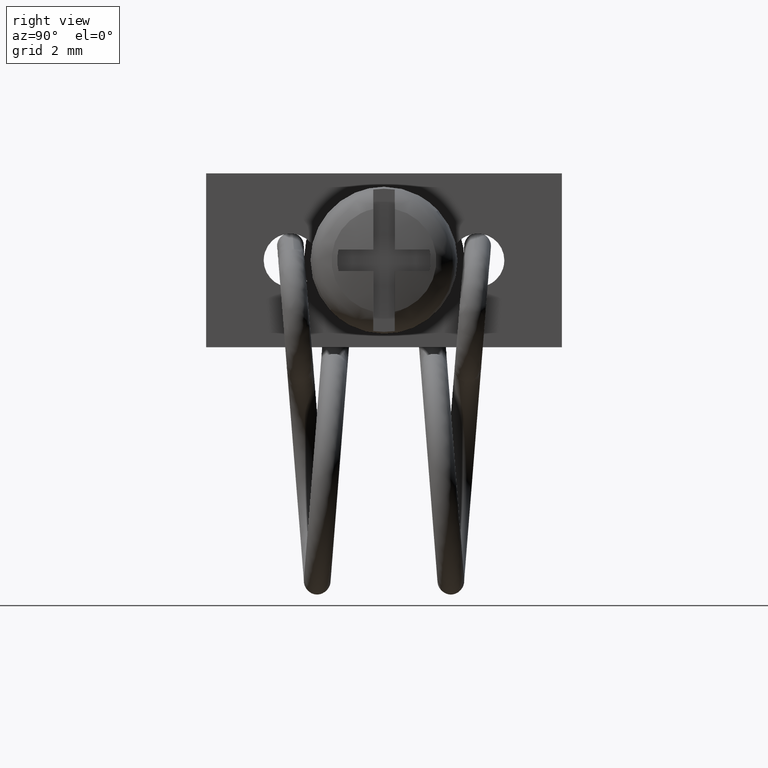
[diagram: clean part render]
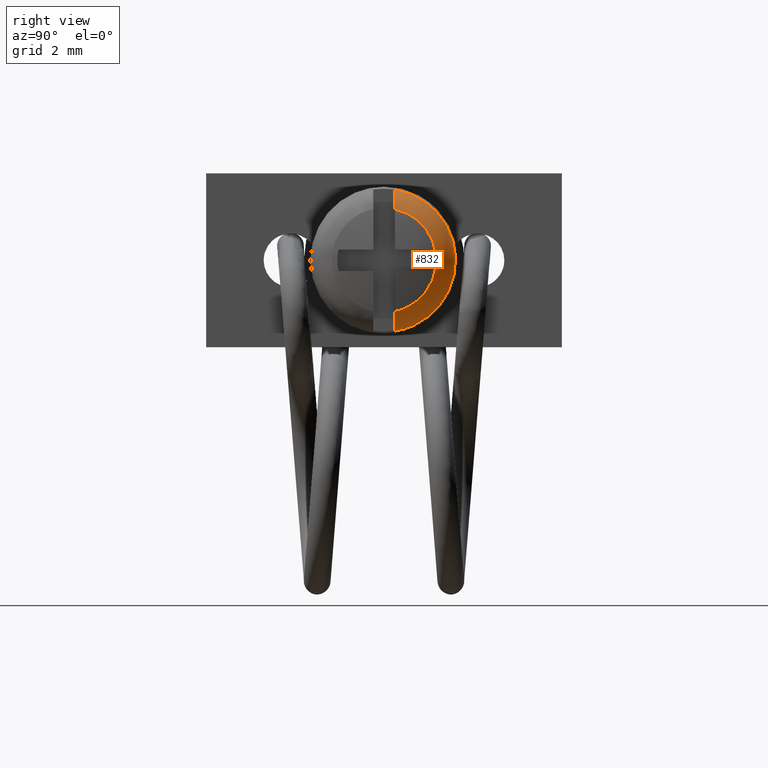
[diagram: same view with one face highlighted and labeled with its STEP entity id]
A machine part, right view. The second image highlights one B-rep face of the part: STEP entity #832.
In plain terms, the highlighted face is a freeform B-spline surface patch.
Its self-contained STEP definition (entity closure, byte-faithful):
#698=CARTESIAN_POINT('',(1.734200538821455,0.035376026440628,1.905406291745100));
#699=CARTESIAN_POINT('',(1.734200538821456,1.905734661454353,1.870680964757170));
#700=CARTESIAN_POINT('',(1.734200538821455,1.905734661454353,1.166887E-016));
#701=CARTESIAN_POINT('',(1.734200538821456,1.905734661454352,-1.870680903965331));
#702=CARTESIAN_POINT('',(1.734200538821455,0.035376088350276,-1.905406290595675));
#703=CARTESIAN_POINT('',(1.560349741198005,0.049290646712349,2.654868785998836));
#704=CARTESIAN_POINT('',(1.560349741198006,2.655326314923320,2.606484781441247));
#705=CARTESIAN_POINT('',(1.560349741198005,2.655326314923320,1.625865E-016));
#706=CARTESIAN_POINT('',(1.560349741198006,2.655326314923319,-2.606484696737863));
#707=CARTESIAN_POINT('',(1.560349741198006,0.049290732973211,-2.654868784397304));
#708=CARTESIAN_POINT('',(0.791235870466461,0.049736002651451,2.678856330497547));
#709=CARTESIAN_POINT('',(0.791235870466461,2.679317993334597,2.630035161787639));
#710=CARTESIAN_POINT('',(0.791235870466461,2.679317993334596,1.640555E-016));
#711=CARTESIAN_POINT('',(0.791235870466461,2.679317993334597,-2.630035076318934));
#712=CARTESIAN_POINT('',(0.791235870466462,0.049736089691707,-2.678856328881545));
#720=(BOUNDED_SURFACE()B_SPLINE_SURFACE(2,2,((#698,#703,#708),(#699,#704,#709),(#700,#705,#710),(#701,#706,#711),(#702,#707,#712)),.UNSPECIFIED.,.F.,.F.,.U.)B_SPLINE_SURFACE_WITH_KNOTS((3,2,3),(3,3),(0.0,4.380990022339500,8.761979943918131),(0.0,1.360848114007600),.UNSPECIFIED.)GEOMETRIC_REPRESENTATION_ITEM()RATIONAL_B_SPLINE_SURFACE(((0.908958891537038,0.719840510203189,0.907615432203880),(0.654075756264036,0.517988470638614,0.653109019277879),(0.924174517699904,0.731890366585162,0.922808569368433),(0.654075762476190,0.517988475558265,0.653109025480851),(0.908958879812636,0.719840500918171,0.907615420496807)))REPRESENTATION_ITEM('')SURFACE());
#721=CARTESIAN_POINT('',(1.720066632739565,0.400000000000205,1.918516210914080));
#722=VERTEX_POINT('',#721);
#723=CARTESIAN_POINT('',(1.720066632739565,0.400000000000205,-1.918516210914080));
#724=VERTEX_POINT('',#723);
#725=CARTESIAN_POINT('',(1.720066632739565,0.400000000000205,1.918516210914080));
#726=CARTESIAN_POINT('',(1.720066632739569,0.529598694466164,1.891513710439119));
#727=CARTESIAN_POINT('',(1.720066632739559,0.736550956478427,1.825902203310442));
#728=CARTESIAN_POINT('',(1.720066632739577,1.041231808963296,1.670297075259347));
#729=CARTESIAN_POINT('',(1.720066632739561,1.272757976404186,1.500710984793018));
#730=CARTESIAN_POINT('',(1.720066632739575,1.504383365810568,1.268407364370585));
#731=CARTESIAN_POINT('',(1.720066632739565,1.722782064143009,0.968499652241996));
#732=CARTESIAN_POINT('',(1.720066632739574,1.875117369002292,0.613439001392913));
#733=CARTESIAN_POINT('',(1.720066632739570,1.955853927601346,0.230731053371985));
#734=CARTESIAN_POINT('',(1.720066632739576,1.967617160067305,-0.084192178415692));
#735=CARTESIAN_POINT('',(1.720066632739565,1.921197880226469,-0.430316055452064));
#736=CARTESIAN_POINT('',(1.720066632739565,1.830575001569665,-0.724674384970347));
#737=CARTESIAN_POINT('',(1.720066632739659,1.668052635381808,-1.049480250563434));
#738=CARTESIAN_POINT('',(1.720066632739523,1.461432523076450,-1.323957539200245));
#739=CARTESIAN_POINT('',(1.720066632739597,1.160267062022928,-1.595388727005273));
#740=CARTESIAN_POINT('',(1.720066632739536,0.816501715141220,-1.799676076677927));
#741=CARTESIAN_POINT('',(1.720066632739607,0.536421043006352,-1.890090944880077));
#742=CARTESIAN_POINT('',(1.720066632739565,0.400000000000205,-1.918516210914080));
#743=B_SPLINE_CURVE_WITH_KNOTS('',3,(#725,#726,#727,#728,#729,#730,#731,#732,#733,#734,#735,#736,#737,#738,#739,#740,#741,#742),.UNSPECIFIED.,.F.,.U.,(4,1,1,1,1,1,1,1,1,1,1,1,1,1,1,4),(0.000000055135531,0.397143271002498,0.647990248688721,1.024242685241203,1.254179882241830,1.630438671790727,2.132117473045435,2.403850416416744,2.800986630641602,3.072734121368050,3.448992678638195,3.720733794173639,4.159699258338476,4.473244786486287,4.933113604783150,5.351167884225881),.UNSPECIFIED.);
#744=EDGE_CURVE('',#722,#724,#743,.T.);
#745=ORIENTED_EDGE('',*,*,#744,.T.);
#746=CARTESIAN_POINT('',(0.847072359902602,0.400000000000205,-2.645947026899500));
#747=VERTEX_POINT('',#746);
#748=CARTESIAN_POINT('',(1.720066632739571,0.400000000000205,-1.918516210914080));
#749=CARTESIAN_POINT('',(1.713134988820187,0.400000000000205,-1.942795968753859));
#750=CARTESIAN_POINT('',(1.705242474351841,0.400000000000205,-1.967027798136017));
#751=CARTESIAN_POINT('',(1.687827751407786,0.400000000000205,-2.014456397138760));
#752=CARTESIAN_POINT('',(1.678290613778985,0.400000000000205,-2.037729025516682));
#753=CARTESIAN_POINT('',(1.647232277690043,0.400000000000205,-2.106244468647215));
#754=CARTESIAN_POINT('',(1.623277094197706,0.400000000000205,-2.150191728092703));
#755=CARTESIAN_POINT('',(1.568779919242184,0.400000000000205,-2.234580237739277));
#756=CARTESIAN_POINT('',(1.537953821076749,0.400000000000205,-2.275303228259521));
#757=CARTESIAN_POINT('',(1.471114213246227,0.400000000000205,-2.350940474622413));
#758=CARTESIAN_POINT('',(1.435070575541227,0.400000000000205,-2.386020308320091));
#759=CARTESIAN_POINT('',(1.357724358053203,0.400000000000205,-2.450690628289800));
#760=CARTESIAN_POINT('',(1.316147172672992,0.400000000000205,-2.480392712506547));
#761=CARTESIAN_POINT('',(1.230128510202858,0.400000000000205,-2.532461815616851));
#762=CARTESIAN_POINT('',(1.185458818400046,0.400000000000205,-2.555073139897444));
#763=CARTESIAN_POINT('',(1.115975221210874,0.400000000000205,-2.583878956968127));
#764=CARTESIAN_POINT('',(1.092399131302078,0.400000000000205,-2.592625500069445));
#765=CARTESIAN_POINT('',(1.044397594117063,0.400000000000205,-2.608367434526802));
#766=CARTESIAN_POINT('',(1.019910594075632,0.400000000000205,-2.615369873238094));
#767=CARTESIAN_POINT('',(0.946397505177101,0.400000000000205,-2.633377187420967));
#768=CARTESIAN_POINT('',(0.896949698228462,0.400000000000205,-2.641540912027100));
#769=CARTESIAN_POINT('',(0.847072359902602,0.400000000000205,-2.645947026899501));
#770=B_SPLINE_CURVE_WITH_KNOTS('',3,(#748,#749,#750,#751,#752,#753,#754,#755,#756,#757,#758,#759,#760,#761,#762,#763,#764,#765,#766,#767,#768,#769),.UNSPECIFIED.,.F.,.U.,(4,2,2,2,2,2,2,2,2,2,4),(0.0,0.062500000000000,0.125000000000000,0.250000000000000,0.375000000000000,0.500000000000000,0.625000000000000,0.750000000000000,0.812500000000000,0.875000000000000,1.0),.UNSPECIFIED.);
#771=EDGE_CURVE('',#724,#747,#770,.T.);
#772=ORIENTED_EDGE('',*,*,#771,.T.);
#773=CARTESIAN_POINT('',(0.847072359902603,1.960184014753645,1.821733871195999));
#774=VERTEX_POINT('',#773);
#775=CARTESIAN_POINT('',(0.847072359902603,1.960184014753645,1.821733871195999));
#776=CARTESIAN_POINT('',(0.847072359902604,2.078561809611716,1.694385153563646));
#777=CARTESIAN_POINT('',(0.847072359902603,2.304196099382637,1.398389297426945));
#778=CARTESIAN_POINT('',(0.847072359902602,2.513159982653475,0.958775828375376));
#779=CARTESIAN_POINT('',(0.847072359902606,2.634349157739798,0.520730805831649));
#780=CARTESIAN_POINT('',(0.847072359902601,2.688656724884455,0.091857689704223));
#781=CARTESIAN_POINT('',(0.847072359902604,2.666511847466830,-0.332919152150860));
#782=CARTESIAN_POINT('',(0.847072359902601,2.577003124496771,-0.755193860093734));
#783=CARTESIAN_POINT('',(0.847072359902607,2.427544978006170,-1.160989800145226));
#784=CARTESIAN_POINT('',(0.847072359902607,2.164166551406685,-1.605287881018404));
#785=CARTESIAN_POINT('',(0.847072359902576,1.805920883077163,-1.998793053313213));
#786=CARTESIAN_POINT('',(0.847072359902620,1.401914545751192,-2.295260792443211));
#787=CARTESIAN_POINT('',(0.847072359902593,0.939652316937582,-2.523920191024190));
#788=CARTESIAN_POINT('',(0.847072359902593,0.601823980517644,-2.615480177494088));
#789=CARTESIAN_POINT('',(0.847072359902602,0.400000000000205,-2.645947026899500));
#790=B_SPLINE_CURVE_WITH_KNOTS('',3,(#775,#776,#777,#778,#779,#780,#781,#782,#783,#784,#785,#786,#787,#788,#789),.UNSPECIFIED.,.F.,.U.,(4,1,1,1,1,1,1,1,1,1,1,1,4),(0.000000034854804,0.521614069066715,1.111264186144461,1.451448925318982,1.882349418814876,2.403963378222424,2.721478930532645,3.175037431035615,3.696652037423855,4.263629659698935,4.762567500170294,5.193473378061835,5.805794491418794),.UNSPECIFIED.);
#791=EDGE_CURVE('',#774,#747,#790,.T.);
#792=ORIENTED_EDGE('',*,*,#791,.F.);
#793=CARTESIAN_POINT('',(0.847072359902603,0.400000000000205,2.645947026899500));
#794=VERTEX_POINT('',#793);
#795=CARTESIAN_POINT('',(0.847072359902603,0.400000000000205,2.645947026899500));
#796=CARTESIAN_POINT('',(0.847072359902603,0.557425837233799,2.622163174548593));
#797=CARTESIAN_POINT('',(0.847072359902603,0.822328923357564,2.557511909588665));
#798=CARTESIAN_POINT('',(0.847072359902602,1.195305836397582,2.403533317677510));
#799=CARTESIAN_POINT('',(0.847072359902597,1.576564995429856,2.181175068674912));
#800=CARTESIAN_POINT('',(0.847072359902612,1.826321222123449,1.965825100940144));
#801=CARTESIAN_POINT('',(0.847072359902603,1.960184014753645,1.821733871195999));
#802=B_SPLINE_CURVE_WITH_KNOTS('',3,(#795,#796,#797,#798,#799,#800,#801),.UNSPECIFIED.,.F.,.U.,(4,1,1,1,4),(3.584103E-009,0.477636033750067,0.814794394283190,1.208137528389750,1.798158665420974),.UNSPECIFIED.);
#803=EDGE_CURVE('',#794,#774,#802,.T.);
#804=ORIENTED_EDGE('',*,*,#803,.F.);
#805=CARTESIAN_POINT('',(0.847072359902603,0.400000000000205,2.645947026899503));
#806=CARTESIAN_POINT('',(0.872245721721139,0.400000000000205,2.643723236945590));
#807=CARTESIAN_POINT('',(0.897530526533830,0.400000000000205,2.640505955745939));
#808=CARTESIAN_POINT('',(0.947348437883489,0.400000000000205,2.632213768574923));
#809=CARTESIAN_POINT('',(0.971977321862532,0.400000000000205,2.627135702871146));
#810=CARTESIAN_POINT('',(1.045041258696505,0.400000000000205,2.609163822698820));
#811=CARTESIAN_POINT('',(1.092658198027734,0.400000000000205,2.593547637476144));
#812=CARTESIAN_POINT('',(1.185686676477980,0.400000000000205,2.554976533633862));
#813=CARTESIAN_POINT('',(1.231275717258847,0.400000000000205,2.531843020536032));
#814=CARTESIAN_POINT('',(1.317219404553951,0.400000000000205,2.479666051400182));
#815=CARTESIAN_POINT('',(1.357958505785123,0.400000000000205,2.450502014435370));
#816=CARTESIAN_POINT('',(1.415742901644445,0.400000000000205,2.402176871228177));
#817=CARTESIAN_POINT('',(1.434448030964929,0.400000000000205,2.385302149894770));
#818=CARTESIAN_POINT('',(1.470721401972691,0.400000000000205,2.349986670116091));
#819=CARTESIAN_POINT('',(1.488268497617137,0.400000000000205,2.331552049330083));
#820=CARTESIAN_POINT('',(1.538326469596352,0.400000000000205,2.274833101923241));
#821=CARTESIAN_POINT('',(1.568581903459861,0.400000000000205,2.234847850430521));
#822=CARTESIAN_POINT('',(1.623013163201527,0.400000000000205,2.150639107082039));
#823=CARTESIAN_POINT('',(1.647289690151798,0.400000000000205,2.106187466297990));
#824=CARTESIAN_POINT('',(1.689067232212949,0.400000000000205,2.013885086312891));
#825=CARTESIAN_POINT('',(1.706311471132971,0.400000000000205,1.966696988337055));
#826=CARTESIAN_POINT('',(1.720066632739566,0.400000000000205,1.918516210914080));
#827=B_SPLINE_CURVE_WITH_KNOTS('',3,(#805,#806,#807,#808,#809,#810,#811,#812,#813,#814,#815,#816,#817,#818,#819,#820,#821,#822,#823,#824,#825,#826),.UNSPECIFIED.,.F.,.U.,(4,2,2,2,2,2,2,2,2,2,4),(0.0,0.062500000000000,0.125000000000000,0.250000000000000,0.375000000000000,0.500000000000000,0.562500000000000,0.625000000000000,0.750000000000000,0.875000000000000,1.0),.UNSPECIFIED.);
#828=EDGE_CURVE('',#794,#722,#827,.T.);
#829=ORIENTED_EDGE('',*,*,#828,.T.);
#830=EDGE_LOOP('',(#745,#772,#792,#804,#829));
#831=FACE_OUTER_BOUND('',#830,.T.);
#832=ADVANCED_FACE('',(#831),#720,.T.);